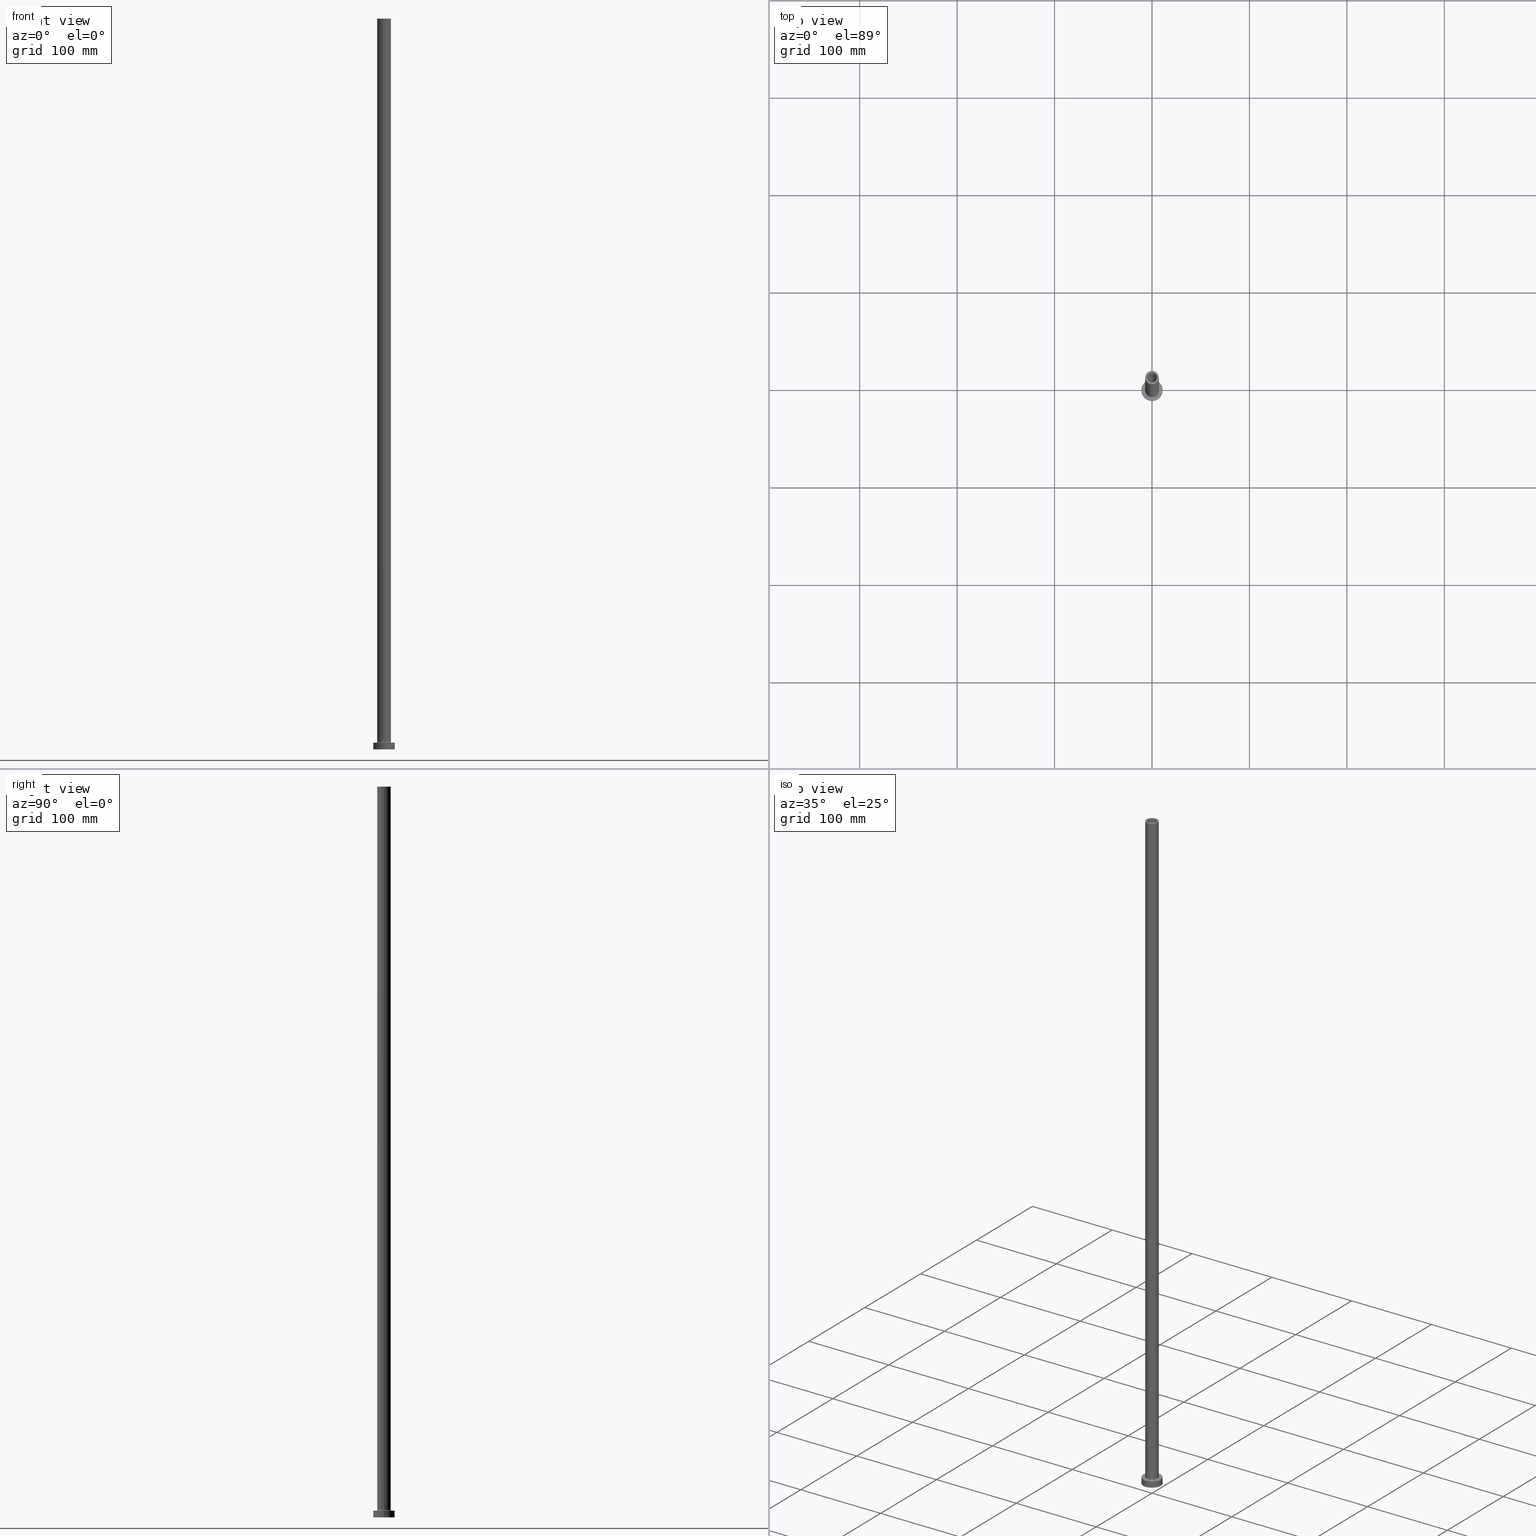
[diagram: canonical four-view strip — front | top / right | iso, engineering-drawing reading convention]
A machine part, canonical four-view strip (front | top / right | iso — engineering-drawing reading convention). The complete STEP part file that produces these views, byte-faithful:
ISO-10303-21;
HEADER;
FILE_DESCRIPTION (( 'STEP AP203' ),
    '1' );
FILE_NAME ('1ff5.STEP',
    '2023-02-13T10:04:57',
    ( '' ),
    ( '' ),
    'SwSTEP 2.0',
    'SolidWorks 2019',
    '' );
FILE_SCHEMA (( 'CONFIG_CONTROL_DESIGN' ));
ENDSEC;

DATA;
#1 = CIRCLE ( 'NONE', #281, 11.00000000000000000 ) ;
#2 = LOCAL_TIME ( 11, 4, 57.00000000000000000, #368 ) ;
#3 = DIRECTION ( 'NONE',  ( 0.000000000000000000, 0.000000000000000000, -1.000000000000000000 ) ) ;
#4 = ORIENTED_EDGE ( 'NONE', *, *, #385, .T. ) ;
#5 = LINE ( 'NONE', #35, #129 ) ;
#6 = EDGE_CURVE ( 'NONE', #294, #206, #100, .T. ) ;
#7 = EDGE_LOOP ( 'NONE', ( #160, #336, #4, #18 ) ) ;
#8 = DIRECTION ( 'NONE',  ( 1.000000000000000000, 0.000000000000000000, 0.000000000000000000 ) ) ;
#9 = CIRCLE ( 'NONE', #269, 5.150000000000001243 ) ;
#10 = AXIS2_PLACEMENT_3D ( 'NONE', #145, #190, #243 ) ;
#11 = CARTESIAN_POINT ( 'NONE',  ( -11.00000000000000000, 0.000000000000000000, 7.000000000000000000 ) ) ;
#12 = ORIENTED_EDGE ( 'NONE', *, *, #432, .T. ) ;
#13 = DIRECTION ( 'NONE',  ( 0.000000000000000000, 0.000000000000000000, -1.000000000000000000 ) ) ;
#14 = DIRECTION ( 'NONE',  ( 0.000000000000000000, 0.000000000000000000, 1.000000000000000000 ) ) ;
#15 = ORIENTED_EDGE ( 'NONE', *, *, #6, .F. ) ;
#16 = PERSON_AND_ORGANIZATION_ROLE ( 'creator' ) ;
#17 = AXIS2_PLACEMENT_3D ( 'NONE', #171, #58, #342 ) ;
#18 = ORIENTED_EDGE ( 'NONE', *, *, #452, .F. ) ;
#19 = DATE_AND_TIME ( #193, #93 ) ;
#20 = EDGE_CURVE ( 'NONE', #31, #138, #1, .T. ) ;
#21 = ORIENTED_EDGE ( 'NONE', *, *, #398, .T. ) ;
#22 = PERSON_AND_ORGANIZATION_ROLE ( 'classification_officer' ) ;
#23 = DIRECTION ( 'NONE',  ( 0.000000000000000000, 0.000000000000000000, 1.000000000000000000 ) ) ;
#24 = APPROVAL_ROLE ( '' ) ;
#25 = DIRECTION ( 'NONE',  ( 1.000000000000000000, 0.000000000000000000, 0.000000000000000000 ) ) ;
#26 = VECTOR ( 'NONE', #310, 1000.000000000000000 ) ;
#27 = APPROVAL_ROLE ( '' ) ;
#28 = MANIFOLD_SOLID_BREP ( 'Odebrat vysunut�m4', #81 ) ;
#29 = APPROVAL ( #228, 'NEUR�EN�' ) ;
#30 = DIRECTION ( 'NONE',  ( 1.000000000000000000, 0.000000000000000000, 0.000000000000000000 ) ) ;
#31 = VERTEX_POINT ( 'NONE', #176 ) ;
#32 = LINE ( 'NONE', #233, #26 ) ;
#33 = FACE_BOUND ( 'NONE', #146, .T. ) ;
#34 = AXIS2_PLACEMENT_3D ( 'NONE', #168, #132, #372 ) ;
#35 = CARTESIAN_POINT ( 'NONE',  ( -5.000000000000000000, 0.000000000000000000, 750.0000000000000000 ) ) ;
#36 = ORIENTED_EDGE ( 'NONE', *, *, #98, .F. ) ;
#37 = LINE ( 'NONE', #283, #115 ) ;
#38 = ORIENTED_EDGE ( 'NONE', *, *, #170, .T. ) ;
#39 = DIRECTION ( 'NONE',  ( 1.000000000000000000, 0.000000000000000000, 0.000000000000000000 ) ) ;
#40 = CARTESIAN_POINT ( 'NONE',  ( 5.000000000000000000, 6.123233995736766282E-16, 705.0000000000000000 ) ) ;
#41 = VECTOR ( 'NONE', #151, 1000.000000000000000 ) ;
#42 = CARTESIAN_POINT ( 'NONE',  ( 0.000000000000000000, 0.000000000000000000, 0.000000000000000000 ) ) ;
#43 = FACE_BOUND ( 'NONE', #421, .T. ) ;
#44 = ORIENTED_EDGE ( 'NONE', *, *, #6, .T. ) ;
#45 = LINE ( 'NONE', #11, #41 ) ;
#46 = CARTESIAN_POINT ( 'NONE',  ( 5.150000000000001243, 6.306931015608869596E-16, 0.000000000000000000 ) ) ;
#47 = CC_DESIGN_PERSON_AND_ORGANIZATION_ASSIGNMENT ( #263, #268, ( #424 ) ) ;
#48 = ORIENTED_EDGE ( 'NONE', *, *, #148, .T. ) ;
#49 = CARTESIAN_POINT ( 'NONE',  ( 0.000000000000000000, 0.000000000000000000, 750.0000000000000000 ) ) ;
#50 = ORIENTED_EDGE ( 'NONE', *, *, #272, .T. ) ;
#51 = PERSON_AND_ORGANIZATION_ROLE ( 'creator' ) ;
#52 = COORDINATED_UNIVERSAL_TIME_OFFSET ( 1, 0, .AHEAD. ) ;
#53 = CIRCLE ( 'NONE', #141, 5.000000000000000000 ) ;
#54 = SECURITY_CLASSIFICATION ( '', '', #437 ) ;
#55 = FACE_BOUND ( 'NONE', #267, .T. ) ;
#56 = VERTEX_POINT ( 'NONE', #185 ) ;
#57 = CARTESIAN_POINT ( 'NONE',  ( 0.000000000000000000, 0.000000000000000000, 0.000000000000000000 ) ) ;
#58 = DIRECTION ( 'NONE',  ( 0.000000000000000000, 0.000000000000000000, 1.000000000000000000 ) ) ;
#59 = APPROVAL_DATE_TIME ( #158, #29 ) ;
#60 = CARTESIAN_POINT ( 'NONE',  ( 0.000000000000000000, 0.000000000000000000, 750.0000000000000000 ) ) ;
#61 = CARTESIAN_POINT ( 'NONE',  ( 5.000000000000000000, 6.123233995736766282E-16, 750.0000000000000000 ) ) ;
#62 = DIRECTION ( 'NONE',  ( 0.000000000000000000, 0.000000000000000000, -1.000000000000000000 ) ) ;
#63 = ADVANCED_FACE ( 'NONE', ( #43, #382 ), #392, .F. ) ;
#64 = CARTESIAN_POINT ( 'NONE',  ( -7.700000000000001066, 9.429780353434621002E-16, 7.700000000000040146 ) ) ;
#65 = CIRCLE ( 'NONE', #327, 7.700000000000001066 ) ;
#66 = CC_DESIGN_APPROVAL ( #154, ( #54 ) ) ;
#67 = DIRECTION ( 'NONE',  ( -0.000000000000000000, -0.000000000000000000, -1.000000000000000000 ) ) ;
#68 = CARTESIAN_POINT ( 'NONE',  ( 0.000000000000000000, 0.000000000000000000, 7.000000000000000000 ) ) ;
#69 = CYLINDRICAL_SURFACE ( 'NONE', #399, 7.000000000000000888 ) ;
#70 = DIRECTION ( 'NONE',  ( -1.000000000000000000, 0.000000000000000000, 0.000000000000000000 ) ) ;
#71 = PRODUCT_RELATED_PRODUCT_CATEGORY ( 'detail', '', ( #424 ) ) ;
#72 = CARTESIAN_POINT ( 'NONE',  ( 0.000000000000000000, 0.000000000000000000, 7.000000000000000000 ) ) ;
#73 = ORIENTED_EDGE ( 'NONE', *, *, #316, .F. ) ;
#74 = AXIS2_PLACEMENT_3D ( 'NONE', #128, #451, #411 ) ;
#75 = APPROVAL_PERSON_ORGANIZATION ( #123, #154, #365 ) ;
#76 = CYLINDRICAL_SURFACE ( 'NONE', #338, 5.150000000000001243 ) ;
#77 = ORIENTED_EDGE ( 'NONE', *, *, #335, .T. ) ;
#78 = DIRECTION ( 'NONE',  ( -0.000000000000000000, -0.000000000000000000, -1.000000000000000000 ) ) ;
#79 = ADVANCED_FACE ( 'NONE', ( #384 ), #326, .T. ) ;
#80 = EDGE_LOOP ( 'NONE', ( #144, #246, #257, #227 ) ) ;
#81 = CLOSED_SHELL ( 'NONE', ( #130, #284, #292, #447, #121, #79, #361, #63, #299, #232, #375, #410, #250, #415 ) ) ;
#82 = DIRECTION ( 'NONE',  ( 1.000000000000000000, 0.000000000000000000, 0.000000000000000000 ) ) ;
#83 = ORIENTED_EDGE ( 'NONE', *, *, #237, .F. ) ;
#84 = APPLICATION_PROTOCOL_DEFINITION ( 'international standard', 'config_control_design', 1994, #254 ) ;
#85 = DESIGN_CONTEXT ( 'detailed design', #357, 'design' ) ;
#86 = EDGE_LOOP ( 'NONE', ( #140, #347 ) ) ;
#87 = EDGE_CURVE ( 'NONE', #303, #178, #379, .T. ) ;
#88 = DIRECTION ( 'NONE',  ( -1.000000000000000000, 0.000000000000000000, 0.000000000000000000 ) ) ;
#89 = VERTEX_POINT ( 'NONE', #354 ) ;
#90 = APPROVAL_DATE_TIME ( #266, #154 ) ;
#91 = AXIS2_PLACEMENT_3D ( 'NONE', #286, #386, #280 ) ;
#92 = DIRECTION ( 'NONE',  ( -0.000000000000000000, -0.000000000000000000, -1.000000000000000000 ) ) ;
#93 = LOCAL_TIME ( 11, 4, 57.00000000000000000, #95 ) ;
#94 = VERTEX_POINT ( 'NONE', #40 ) ;
#95 = COORDINATED_UNIVERSAL_TIME_OFFSET ( 1, 0, .AHEAD. ) ;
#96 = CARTESIAN_POINT ( 'NONE',  ( -7.700000000000001066, 9.429780353434621002E-16, 7.000000000000020428 ) ) ;
#97 = CARTESIAN_POINT ( 'NONE',  ( -5.150000000000001243, 0.000000000000000000, 705.0000000000000000 ) ) ;
#98 = EDGE_CURVE ( 'NONE', #178, #303, #65, .T. ) ;
#99 = CARTESIAN_POINT ( 'NONE',  ( 0.000000000000000000, 0.000000000000000000, 705.0000000000000000 ) ) ;
#100 = CIRCLE ( 'NONE', #297, 11.00000000000000000 ) ;
#101 = DIRECTION ( 'NONE',  ( 1.000000000000000000, 0.000000000000000000, -0.000000000000000000 ) ) ;
#102 = CC_DESIGN_PERSON_AND_ORGANIZATION_ASSIGNMENT ( #167, #51, ( #189 ) ) ;
#103 = CARTESIAN_POINT ( 'NONE',  ( 0.000000000000000000, 0.000000000000000000, 7.700000000000040146 ) ) ;
#104 = CARTESIAN_POINT ( 'NONE',  ( -7.000000000000000888, 0.000000000000000000, 750.0000000000000000 ) ) ;
#105 = ORIENTED_EDGE ( 'NONE', *, *, #393, .T. ) ;
#106 = AXIS2_PLACEMENT_3D ( 'NONE', #191, #14, #25 ) ;
#107 = CYLINDRICAL_SURFACE ( 'NONE', #408, 5.000000000000000000 ) ;
#108 = CC_DESIGN_DATE_AND_TIME_ASSIGNMENT ( #298, #442, ( #54 ) ) ;
#109 = ORIENTED_EDGE ( 'NONE', *, *, #432, .F. ) ;
#110 = FACE_OUTER_BOUND ( 'NONE', #147, .T. ) ;
#111 = EDGE_LOOP ( 'NONE', ( #77, #183, #109, #196 ) ) ;
#112 = DIRECTION ( 'NONE',  ( -0.000000000000000000, -0.000000000000000000, -1.000000000000000000 ) ) ;
#113 = EDGE_LOOP ( 'NONE', ( #435, #225, #36, #73 ) ) ;
#114 = AXIS2_PLACEMENT_3D ( 'NONE', #229, #291, #117 ) ;
#115 = VECTOR ( 'NONE', #13, 1000.000000000000000 ) ;
#116 = DIRECTION ( 'NONE',  ( 0.000000000000000000, 0.000000000000000000, 1.000000000000000000 ) ) ;
#117 = DIRECTION ( 'NONE',  ( 1.000000000000000000, 0.000000000000000000, 0.000000000000000000 ) ) ;
#118 = VERTEX_POINT ( 'NONE', #46 ) ;
#119 = AXIS2_PLACEMENT_3D ( 'NONE', #302, #256, #88 ) ;
#120 = CARTESIAN_POINT ( 'NONE',  ( 0.000000000000000000, 0.000000000000000000, 750.0000000000000000 ) ) ;
#121 = ADVANCED_FACE ( 'NONE', ( #159 ), #443, .T. ) ;
#122 = ORIENTED_EDGE ( 'NONE', *, *, #321, .F. ) ;
#123 = PERSON_AND_ORGANIZATION ( #419, #380 ) ;
#124 = COORDINATED_UNIVERSAL_TIME_OFFSET ( 1, 0, .AHEAD. ) ;
#125 = DIRECTION ( 'NONE',  ( 1.000000000000000000, 0.000000000000000000, 0.000000000000000000 ) ) ;
#126 = ORIENTED_EDGE ( 'NONE', *, *, #224, .F. ) ;
#127 = CIRCLE ( 'NONE', #217, 7.000000000000000888 ) ;
#128 = CARTESIAN_POINT ( 'NONE',  ( 0.000000000000000000, 0.000000000000000000, 750.0000000000000000 ) ) ;
#129 = VECTOR ( 'NONE', #3, 1000.000000000000000 ) ;
#130 = ADVANCED_FACE ( 'NONE', ( #438 ), #403, .F. ) ;
#131 = FACE_OUTER_BOUND ( 'NONE', #7, .T. ) ;
#132 = DIRECTION ( 'NONE',  ( 0.000000000000000000, 0.000000000000000000, 1.000000000000000000 ) ) ;
#133 = CARTESIAN_POINT ( 'NONE',  ( 0.000000000000000000, 0.000000000000000000, 719.5663996924427011 ) ) ;
#134 = CIRCLE ( 'NONE', #91, 11.00000000000000000 ) ;
#135 = EDGE_CURVE ( 'NONE', #325, #320, #238, .T. ) ;
#136 = CIRCLE ( 'NONE', #10, 5.000000000000000000 ) ;
#137 = DIRECTION ( 'NONE',  ( 0.000000000000000000, 0.000000000000000000, 1.000000000000000000 ) ) ;
#138 = VERTEX_POINT ( 'NONE', #446 ) ;
#139 = DIRECTION ( 'NONE',  ( -0.000000000000000000, -0.000000000000000000, -1.000000000000000000 ) ) ;
#140 = ORIENTED_EDGE ( 'NONE', *, *, #265, .T. ) ;
#141 = AXIS2_PLACEMENT_3D ( 'NONE', #332, #329, #362 ) ;
#142 = EDGE_CURVE ( 'NONE', #94, #89, #53, .T. ) ;
#143 = CARTESIAN_POINT ( 'NONE',  ( 5.150000000000001243, 6.306931015608869596E-16, 705.0000000000000000 ) ) ;
#144 = ORIENTED_EDGE ( 'NONE', *, *, #184, .F. ) ;
#145 = CARTESIAN_POINT ( 'NONE',  ( 0.000000000000000000, 0.000000000000000000, 705.0000000000000000 ) ) ;
#146 = EDGE_LOOP ( 'NONE', ( #367, #216 ) ) ;
#147 = EDGE_LOOP ( 'NONE', ( #431, #230, #21, #377 ) ) ;
#148 = EDGE_CURVE ( 'NONE', #138, #206, #45, .T. ) ;
#149 = CIRCLE ( 'NONE', #289, 5.000000000000000000 ) ;
#150 = PRODUCT_DEFINITION_SHAPE ( 'NONE', 'NONE',  #189 ) ;
#151 = DIRECTION ( 'NONE',  ( -0.000000000000000000, -0.000000000000000000, -1.000000000000000000 ) ) ;
#152 = ORIENTED_EDGE ( 'NONE', *, *, #393, .F. ) ;
#153 = DIRECTION ( 'NONE',  ( -1.000000000000000000, 1.224646799147351975E-16, 0.000000000000000000 ) ) ;
#154 = APPROVAL ( #450, 'NEUR�EN�' ) ;
#155 = PERSON_AND_ORGANIZATION ( #419, #380 ) ;
#156 = AXIS2_PLACEMENT_3D ( 'NONE', #172, #23, #101 ) ;
#157 = DIRECTION ( 'NONE',  ( -0.000000000000000000, -0.000000000000000000, -1.000000000000000000 ) ) ;
#158 = DATE_AND_TIME ( #405, #210 ) ;
#159 = FACE_OUTER_BOUND ( 'NONE', #458, .T. ) ;
#160 = ORIENTED_EDGE ( 'NONE', *, *, #224, .T. ) ;
#161 = CALENDAR_DATE ( 2023, 13, 2 ) ;
#162 = FACE_OUTER_BOUND ( 'NONE', #221, .T. ) ;
#163 = EDGE_CURVE ( 'NONE', #220, #175, #149, .T. ) ;
#164 = AXIS2_PLACEMENT_3D ( 'NONE', #68, #212, #352 ) ;
#165 = CARTESIAN_POINT ( 'NONE',  ( 7.700000000000001066, 0.000000000000000000, 7.700000000000040146 ) ) ;
#166 = PRODUCT_DEFINITION_FORMATION_WITH_SPECIFIED_SOURCE ( 'LIBOVOLN�', '', #424, .NOT_KNOWN. ) ;
#167 = PERSON_AND_ORGANIZATION ( #419, #380 ) ;
#168 = CARTESIAN_POINT ( 'NONE',  ( 0.000000000000000000, 0.000000000000000000, 7.000000000000000000 ) ) ;
#169 = ORIENTED_EDGE ( 'NONE', *, *, #98, .T. ) ;
#170 = EDGE_CURVE ( 'NONE', #56, #262, #356, .T. ) ;
#171 = CARTESIAN_POINT ( 'NONE',  ( 0.000000000000000000, 0.000000000000000000, 705.0000000000000000 ) ) ;
#172 = CARTESIAN_POINT ( 'NONE',  ( 0.000000000000000000, 0.000000000000000000, 750.0000000000000000 ) ) ;
#173 = AXIS2_PLACEMENT_3D ( 'NONE', #456, #137, #271 ) ;
#174 = CC_DESIGN_APPROVAL ( #29, ( #189 ) ) ;
#175 = VERTEX_POINT ( 'NONE', #366 ) ;
#176 = CARTESIAN_POINT ( 'NONE',  ( 11.00000000000000000, 1.347111479062088405E-15, 7.000000000000000000 ) ) ;
#177 = CARTESIAN_POINT ( 'NONE',  ( 11.00000000000000000, 1.347111479062088405E-15, 7.000000000000000000 ) ) ;
#178 = VERTEX_POINT ( 'NONE', #376 ) ;
#179 = CC_DESIGN_PERSON_AND_ORGANIZATION_ASSIGNMENT ( #301, #22, ( #54 ) ) ;
#180 = DIRECTION ( 'NONE',  ( 1.000000000000000000, 0.000000000000000000, 0.000000000000000000 ) ) ;
#181 = CARTESIAN_POINT ( 'NONE',  ( 0.000000000000000000, 0.000000000000000000, 7.000000000000000000 ) ) ;
#182 = CARTESIAN_POINT ( 'NONE',  ( 0.000000000000000000, 0.000000000000000000, 750.0000000000000000 ) ) ;
#183 = ORIENTED_EDGE ( 'NONE', *, *, #242, .T. ) ;
#184 = EDGE_CURVE ( 'NONE', #325, #118, #236, .T. ) ;
#185 = CARTESIAN_POINT ( 'NONE',  ( -7.000000000000000888, 0.000000000000000000, 7.700000000000040146 ) ) ;
#186 = VECTOR ( 'NONE', #67, 1000.000000000000000 ) ;
#187 = CIRCLE ( 'NONE', #440, 0.7000000000000000666 ) ;
#188 = ORIENTED_EDGE ( 'NONE', *, *, #265, .F. ) ;
#189 = PRODUCT_DEFINITION ( 'NEZN�M�', '', #166, #85 ) ;
#190 = DIRECTION ( 'NONE',  ( 0.000000000000000000, 0.000000000000000000, 1.000000000000000000 ) ) ;
#191 = CARTESIAN_POINT ( 'NONE',  ( 0.000000000000000000, 0.000000000000000000, 7.700000000000040146 ) ) ;
#192 = PERSON_AND_ORGANIZATION ( #419, #380 ) ;
#193 = CALENDAR_DATE ( 2023, 13, 2 ) ;
#194 = TOROIDAL_SURFACE ( 'NONE', #455, 7.700000000000001066, 0.6999999999999999556 ) ;
#195 = AXIS2_PLACEMENT_3D ( 'NONE', #72, #295, #381 ) ;
#196 = ORIENTED_EDGE ( 'NONE', *, *, #425, .F. ) ;
#197 = SHAPE_DEFINITION_REPRESENTATION ( #150, #444 ) ;
#198 = CARTESIAN_POINT ( 'NONE',  ( 11.00000000000000000, 1.347111479062088405E-15, 0.000000000000000000 ) ) ;
#199 = EDGE_LOOP ( 'NONE', ( #360, #50 ) ) ;
#200 = CALENDAR_DATE ( 2023, 13, 2 ) ;
#201 = CARTESIAN_POINT ( 'NONE',  ( 7.000000000000000888, 8.572527594031472204E-16, 7.700000000000040146 ) ) ;
#202 = DATE_TIME_ROLE ( 'creation_date' ) ;
#203 = CIRCLE ( 'NONE', #373, 5.150000000000001243 ) ;
#204 = DIRECTION ( 'NONE',  ( 0.000000000000000000, 0.000000000000000000, 1.000000000000000000 ) ) ;
#205 = CC_DESIGN_APPROVAL ( #309, ( #166 ) ) ;
#206 = VERTEX_POINT ( 'NONE', #346 ) ;
#207 = PLANE ( 'NONE',  #17 ) ;
#208 = DIRECTION ( 'NONE',  ( -1.000000000000000000, 0.000000000000000000, 0.000000000000000000 ) ) ;
#209 = AXIS2_PLACEMENT_3D ( 'NONE', #60, #345, #30 ) ;
#210 = LOCAL_TIME ( 11, 4, 57.00000000000000000, #344 ) ;
#211 = FACE_OUTER_BOUND ( 'NONE', #264, .T. ) ;
#212 = DIRECTION ( 'NONE',  ( -0.000000000000000000, -0.000000000000000000, -1.000000000000000000 ) ) ;
#213 = DIRECTION ( 'NONE',  ( -1.000000000000000000, 0.000000000000000000, 0.000000000000000000 ) ) ;
#214 = CARTESIAN_POINT ( 'NONE',  ( 0.000000000000000000, 0.000000000000000000, 7.000000000000000000 ) ) ;
#215 = PLANE ( 'NONE',  #195 ) ;
#216 = ORIENTED_EDGE ( 'NONE', *, *, #163, .F. ) ;
#217 = AXIS2_PLACEMENT_3D ( 'NONE', #340, #204, #312 ) ;
#218 = EDGE_CURVE ( 'NONE', #404, #56, #32, .T. ) ;
#219 = FACE_OUTER_BOUND ( 'NONE', #86, .T. ) ;
#220 = VERTEX_POINT ( 'NONE', #61 ) ;
#221 = EDGE_LOOP ( 'NONE', ( #126, #358 ) ) ;
#222 = DIRECTION ( 'NONE',  ( -1.000000000000000000, 0.000000000000000000, 0.000000000000000000 ) ) ;
#223 = AXIS2_PLACEMENT_3D ( 'NONE', #395, #92, #222 ) ;
#224 = EDGE_CURVE ( 'NONE', #320, #325, #203, .T. ) ;
#225 = ORIENTED_EDGE ( 'NONE', *, *, #459, .T. ) ;
#226 =( NAMED_UNIT ( * ) SI_UNIT ( $, .STERADIAN. ) SOLID_ANGLE_UNIT ( ) );
#227 = ORIENTED_EDGE ( 'NONE', *, *, #370, .T. ) ;
#228 = APPROVAL_STATUS ( 'not_yet_approved' ) ;
#229 = CARTESIAN_POINT ( 'NONE',  ( 0.000000000000000000, 0.000000000000000000, 705.0000000000000000 ) ) ;
#230 = ORIENTED_EDGE ( 'NONE', *, *, #237, .T. ) ;
#231 = VECTOR ( 'NONE', #414, 1000.000000000000000 ) ;
#232 = ADVANCED_FACE ( 'NONE', ( #33, #235 ), #374, .T. ) ;
#233 = CARTESIAN_POINT ( 'NONE',  ( -7.000000000000000888, 0.000000000000000000, 750.0000000000000000 ) ) ;
#234 = DIRECTION ( 'NONE',  ( 1.000000000000000000, 0.000000000000000000, 0.000000000000000000 ) ) ;
#235 = FACE_OUTER_BOUND ( 'NONE', #199, .T. ) ;
#236 = LINE ( 'NONE', #369, #231 ) ;
#237 = EDGE_CURVE ( 'NONE', #429, #262, #418, .T. ) ;
#238 = CIRCLE ( 'NONE', #114, 5.150000000000001243 ) ;
#239 = DIRECTION ( 'NONE',  ( 1.000000000000000000, 0.000000000000000000, 0.000000000000000000 ) ) ;
#240 = DIRECTION ( 'NONE',  ( -0.000000000000000000, -0.000000000000000000, -1.000000000000000000 ) ) ;
#241 = FACE_OUTER_BOUND ( 'NONE', #80, .T. ) ;
#242 = EDGE_CURVE ( 'NONE', #220, #94, #420, .T. ) ;
#243 = DIRECTION ( 'NONE',  ( 1.000000000000000000, 0.000000000000000000, 0.000000000000000000 ) ) ;
#244 = AXIS2_PLACEMENT_3D ( 'NONE', #251, #389, #355 ) ;
#245 = CC_DESIGN_SECURITY_CLASSIFICATION ( #54, ( #166 ) ) ;
#246 = ORIENTED_EDGE ( 'NONE', *, *, #135, .T. ) ;
#247 = CARTESIAN_POINT ( 'NONE',  ( 7.000000000000000888, 8.572527594031472204E-16, 750.0000000000000000 ) ) ;
#248 = DIRECTION ( 'NONE',  ( 0.000000000000000000, 0.000000000000000000, 1.000000000000000000 ) ) ;
#249 = CARTESIAN_POINT ( 'NONE',  ( 0.000000000000000000, 0.000000000000000000, 0.000000000000000000 ) ) ;
#250 = ADVANCED_FACE ( 'NONE', ( #55, #162 ), #207, .F. ) ;
#251 = CARTESIAN_POINT ( 'NONE',  ( 0.000000000000000000, 0.000000000000000000, 7.700000000000040146 ) ) ;
#252 = DIRECTION ( 'NONE',  ( 1.000000000000000000, 0.000000000000000000, 0.000000000000000000 ) ) ;
#253 = DIRECTION ( 'NONE',  ( 0.000000000000000000, 0.000000000000000000, 1.000000000000000000 ) ) ;
#254 = APPLICATION_CONTEXT ( 'configuration controlled 3d designs of mechanical parts and assemblies' ) ;
#255 = CC_DESIGN_PERSON_AND_ORGANIZATION_ASSIGNMENT ( #155, #304, ( #166 ) ) ;
#256 = DIRECTION ( 'NONE',  ( 0.000000000000000000, 0.000000000000000000, -1.000000000000000000 ) ) ;
#257 = ORIENTED_EDGE ( 'NONE', *, *, #452, .T. ) ;
#258 = CIRCLE ( 'NONE', #34, 11.00000000000000000 ) ;
#259 =( GEOMETRIC_REPRESENTATION_CONTEXT ( 3 ) GLOBAL_UNCERTAINTY_ASSIGNED_CONTEXT ( ( #261 ) ) GLOBAL_UNIT_ASSIGNED_CONTEXT ( ( #457, #371, #226 ) ) REPRESENTATION_CONTEXT ( 'NONE', 'WORKASPACE' ) );
#260 = APPROVAL_DATE_TIME ( #19, #309 ) ;
#261 = UNCERTAINTY_MEASURE_WITH_UNIT (LENGTH_MEASURE( 1.000000000000000082E-05 ), #457, 'distance_accuracy_value', 'NONE');
#262 = VERTEX_POINT ( 'NONE', #201 ) ;
#263 = PERSON_AND_ORGANIZATION ( #419, #380 ) ;
#264 = EDGE_LOOP ( 'NONE', ( #330, #401, #315, #288 ) ) ;
#265 = EDGE_CURVE ( 'NONE', #138, #31, #258, .T. ) ;
#266 = DATE_AND_TIME ( #200, #434 ) ;
#267 = EDGE_LOOP ( 'NONE', ( #12, #296 ) ) ;
#268 = PERSON_AND_ORGANIZATION_ROLE ( 'design_owner' ) ;
#269 = AXIS2_PLACEMENT_3D ( 'NONE', #42, #139, #180 ) ;
#270 = AXIS2_PLACEMENT_3D ( 'NONE', #57, #402, #234 ) ;
#271 = DIRECTION ( 'NONE',  ( 1.000000000000000000, 0.000000000000000000, 0.000000000000000000 ) ) ;
#272 = EDGE_CURVE ( 'NONE', #429, #404, #127, .T. ) ;
#273 = DIRECTION ( 'NONE',  ( 0.000000000000000000, 0.000000000000000000, -1.000000000000000000 ) ) ;
#274 = DIRECTION ( 'NONE',  ( 0.000000000000000000, 0.000000000000000000, -1.000000000000000000 ) ) ;
#275 = AXIS2_PLACEMENT_3D ( 'NONE', #461, #253, #387 ) ;
#276 = DIRECTION ( 'NONE',  ( 0.000000000000000000, 0.000000000000000000, 1.000000000000000000 ) ) ;
#277 = CARTESIAN_POINT ( 'NONE',  ( 5.000000000000000000, 6.123233995736766282E-16, 750.0000000000000000 ) ) ;
#278 = CC_DESIGN_PERSON_AND_ORGANIZATION_ASSIGNMENT ( #409, #16, ( #166 ) ) ;
#279 = ORIENTED_EDGE ( 'NONE', *, *, #218, .T. ) ;
#280 = DIRECTION ( 'NONE',  ( 1.000000000000000000, 0.000000000000000000, 0.000000000000000000 ) ) ;
#281 = AXIS2_PLACEMENT_3D ( 'NONE', #214, #248, #8 ) ;
#282 = ORIENTED_EDGE ( 'NONE', *, *, #87, .T. ) ;
#283 = CARTESIAN_POINT ( 'NONE',  ( -5.150000000000001243, 0.000000000000000000, 719.5663996924427011 ) ) ;
#284 = ADVANCED_FACE ( 'NONE', ( #131 ), #454, .F. ) ;
#285 = ORIENTED_EDGE ( 'NONE', *, *, #163, .T. ) ;
#286 = CARTESIAN_POINT ( 'NONE',  ( 0.000000000000000000, 0.000000000000000000, 0.000000000000000000 ) ) ;
#287 = ORIENTED_EDGE ( 'NONE', *, *, #328, .F. ) ;
#288 = ORIENTED_EDGE ( 'NONE', *, *, #87, .F. ) ;
#289 = AXIS2_PLACEMENT_3D ( 'NONE', #120, #293, #82 ) ;
#290 = LOCAL_TIME ( 11, 4, 57.00000000000000000, #52 ) ;
#291 = DIRECTION ( 'NONE',  ( 0.000000000000000000, 0.000000000000000000, 1.000000000000000000 ) ) ;
#292 = ADVANCED_FACE ( 'NONE', ( #314 ), #313, .F. ) ;
#293 = DIRECTION ( 'NONE',  ( 0.000000000000000000, 0.000000000000000000, 1.000000000000000000 ) ) ;
#294 = VERTEX_POINT ( 'NONE', #198 ) ;
#295 = DIRECTION ( 'NONE',  ( 0.000000000000000000, 0.000000000000000000, 1.000000000000000000 ) ) ;
#296 = ORIENTED_EDGE ( 'NONE', *, *, #142, .T. ) ;
#297 = AXIS2_PLACEMENT_3D ( 'NONE', #249, #116, #252 ) ;
#298 = DATE_AND_TIME ( #445, #2 ) ;
#299 = ADVANCED_FACE ( 'NONE', ( #305 ), #448, .T. ) ;
#300 = EDGE_LOOP ( 'NONE', ( #152, #188, #48, #396 ) ) ;
#301 = PERSON_AND_ORGANIZATION ( #419, #380 ) ;
#302 = CARTESIAN_POINT ( 'NONE',  ( 0.000000000000000000, 0.000000000000000000, 750.0000000000000000 ) ) ;
#303 = VERTEX_POINT ( 'NONE', #96 ) ;
#304 = PERSON_AND_ORGANIZATION_ROLE ( 'design_supplier' ) ;
#305 = FACE_OUTER_BOUND ( 'NONE', #333, .T. ) ;
#306 = MECHANICAL_CONTEXT ( 'NONE', #254, 'mechanical' ) ;
#307 = CIRCLE ( 'NONE', #209, 7.000000000000000888 ) ;
#308 = DIRECTION ( 'NONE',  ( 0.000000000000000000, -1.000000000000000000, 0.000000000000000000 ) ) ;
#309 = APPROVAL ( #334, 'NEUR�EN�' ) ;
#310 = DIRECTION ( 'NONE',  ( -0.000000000000000000, -0.000000000000000000, -1.000000000000000000 ) ) ;
#311 = ORIENTED_EDGE ( 'NONE', *, *, #385, .F. ) ;
#312 = DIRECTION ( 'NONE',  ( 1.000000000000000000, 0.000000000000000000, 0.000000000000000000 ) ) ;
#313 = TOROIDAL_SURFACE ( 'NONE', #173, 7.700000000000001066, 0.6999999999999999556 ) ;
#314 = FACE_OUTER_BOUND ( 'NONE', #113, .T. ) ;
#315 = ORIENTED_EDGE ( 'NONE', *, *, #316, .T. ) ;
#316 = EDGE_CURVE ( 'NONE', #262, #178, #364, .T. ) ;
#317 = CARTESIAN_POINT ( 'NONE',  ( 0.000000000000000000, 0.000000000000000000, 750.0000000000000000 ) ) ;
#318 = VERTEX_POINT ( 'NONE', #413 ) ;
#319 = FACE_OUTER_BOUND ( 'NONE', #350, .T. ) ;
#320 = VERTEX_POINT ( 'NONE', #97 ) ;
#321 = EDGE_CURVE ( 'NONE', #404, #429, #307, .T. ) ;
#322 = DIRECTION ( 'NONE',  ( -1.000000000000000000, 0.000000000000000000, 0.000000000000000000 ) ) ;
#323 = EDGE_LOOP ( 'NONE', ( #287, #15 ) ) ;
#324 = CARTESIAN_POINT ( 'NONE',  ( 0.000000000000000000, 0.000000000000000000, 719.5663996924427011 ) ) ;
#325 = VERTEX_POINT ( 'NONE', #143 ) ;
#326 = CYLINDRICAL_SURFACE ( 'NONE', #397, 11.00000000000000000 ) ;
#327 = AXIS2_PLACEMENT_3D ( 'NONE', #181, #157, #125 ) ;
#328 = EDGE_CURVE ( 'NONE', #206, #294, #134, .T. ) ;
#329 = DIRECTION ( 'NONE',  ( 0.000000000000000000, 0.000000000000000000, 1.000000000000000000 ) ) ;
#330 = ORIENTED_EDGE ( 'NONE', *, *, #459, .F. ) ;
#331 = FACE_BOUND ( 'NONE', #423, .T. ) ;
#332 = CARTESIAN_POINT ( 'NONE',  ( 0.000000000000000000, 0.000000000000000000, 705.0000000000000000 ) ) ;
#333 = EDGE_LOOP ( 'NONE', ( #83, #122, #279, #38 ) ) ;
#334 = APPROVAL_STATUS ( 'not_yet_approved' ) ;
#335 = EDGE_CURVE ( 'NONE', #175, #220, #439, .T. ) ;
#336 = ORIENTED_EDGE ( 'NONE', *, *, #184, .T. ) ;
#337 = AXIS2_PLACEMENT_3D ( 'NONE', #165, #308, #273 ) ;
#338 = AXIS2_PLACEMENT_3D ( 'NONE', #324, #351, #359 ) ;
#339 = APPLICATION_PROTOCOL_DEFINITION ( 'international standard', 'config_control_design', 1994, #357 ) ;
#340 = CARTESIAN_POINT ( 'NONE',  ( 0.000000000000000000, 0.000000000000000000, 750.0000000000000000 ) ) ;
#341 = ORIENTED_EDGE ( 'NONE', *, *, #142, .F. ) ;
#342 = DIRECTION ( 'NONE',  ( 1.000000000000000000, 0.000000000000000000, -0.000000000000000000 ) ) ;
#343 = CC_DESIGN_DATE_AND_TIME_ASSIGNMENT ( #412, #202, ( #189 ) ) ;
#344 = COORDINATED_UNIVERSAL_TIME_OFFSET ( 1, 0, .AHEAD. ) ;
#345 = DIRECTION ( 'NONE',  ( 0.000000000000000000, 0.000000000000000000, 1.000000000000000000 ) ) ;
#346 = CARTESIAN_POINT ( 'NONE',  ( -11.00000000000000000, 0.000000000000000000, 0.000000000000000000 ) ) ;
#347 = ORIENTED_EDGE ( 'NONE', *, *, #20, .T. ) ;
#348 = CIRCLE ( 'NONE', #388, 5.150000000000001243 ) ;
#349 = DIRECTION ( 'NONE',  ( 0.000000000000000000, 0.000000000000000000, 1.000000000000000000 ) ) ;
#350 = EDGE_LOOP ( 'NONE', ( #427, #285, #436, #341 ) ) ;
#351 = DIRECTION ( 'NONE',  ( 0.000000000000000000, 0.000000000000000000, -1.000000000000000000 ) ) ;
#352 = DIRECTION ( 'NONE',  ( 1.000000000000000000, 0.000000000000000000, 0.000000000000000000 ) ) ;
#353 = LINE ( 'NONE', #177, #186 ) ;
#354 = CARTESIAN_POINT ( 'NONE',  ( -5.000000000000000000, 0.000000000000000000, 705.0000000000000000 ) ) ;
#355 = DIRECTION ( 'NONE',  ( 1.000000000000000000, 0.000000000000000000, 0.000000000000000000 ) ) ;
#356 = CIRCLE ( 'NONE', #106, 7.000000000000000888 ) ;
#357 = APPLICATION_CONTEXT ( 'configuration controlled 3d designs of mechanical parts and assemblies' ) ;
#358 = ORIENTED_EDGE ( 'NONE', *, *, #135, .F. ) ;
#359 = DIRECTION ( 'NONE',  ( -1.000000000000000000, 0.000000000000000000, 0.000000000000000000 ) ) ;
#360 = ORIENTED_EDGE ( 'NONE', *, *, #321, .T. ) ;
#361 = ADVANCED_FACE ( 'NONE', ( #331, #219 ), #215, .T. ) ;
#362 = DIRECTION ( 'NONE',  ( 1.000000000000000000, 0.000000000000000000, 0.000000000000000000 ) ) ;
#363 = PERSON_AND_ORGANIZATION ( #419, #380 ) ;
#364 = CIRCLE ( 'NONE', #337, 0.7000000000000000666 ) ;
#365 = APPROVAL_ROLE ( '' ) ;
#366 = CARTESIAN_POINT ( 'NONE',  ( -5.000000000000000000, 0.000000000000000000, 750.0000000000000000 ) ) ;
#367 = ORIENTED_EDGE ( 'NONE', *, *, #335, .F. ) ;
#368 = COORDINATED_UNIVERSAL_TIME_OFFSET ( 1, 0, .AHEAD. ) ;
#369 = CARTESIAN_POINT ( 'NONE',  ( 5.150000000000001243, 6.306931015608869596E-16, 719.5663996924427011 ) ) ;
#370 = EDGE_CURVE ( 'NONE', #318, #118, #348, .T. ) ;
#371 =( NAMED_UNIT ( * ) PLANE_ANGLE_UNIT ( ) SI_UNIT ( $, .RADIAN. ) );
#372 = DIRECTION ( 'NONE',  ( 1.000000000000000000, 0.000000000000000000, 0.000000000000000000 ) ) ;
#373 = AXIS2_PLACEMENT_3D ( 'NONE', #99, #276, #239 ) ;
#374 = PLANE ( 'NONE',  #156 ) ;
#375 = ADVANCED_FACE ( 'NONE', ( #211 ), #194, .F. ) ;
#376 = CARTESIAN_POINT ( 'NONE',  ( 7.700000000000001066, 0.000000000000000000, 7.000000000000020428 ) ) ;
#377 = ORIENTED_EDGE ( 'NONE', *, *, #218, .F. ) ;
#378 = DIRECTION ( 'NONE',  ( 0.000000000000000000, 0.000000000000000000, -1.000000000000000000 ) ) ;
#379 = CIRCLE ( 'NONE', #164, 7.700000000000001066 ) ;
#380 = ORGANIZATION ( 'NEUR�EN�', 'NEUR�EN�', '' ) ;
#381 = DIRECTION ( 'NONE',  ( 1.000000000000000000, 0.000000000000000000, -0.000000000000000000 ) ) ;
#382 = FACE_OUTER_BOUND ( 'NONE', #323, .T. ) ;
#383 = DIRECTION ( 'NONE',  ( 1.000000000000000000, 0.000000000000000000, 0.000000000000000000 ) ) ;
#384 = FACE_OUTER_BOUND ( 'NONE', #300, .T. ) ;
#385 = EDGE_CURVE ( 'NONE', #118, #318, #9, .T. ) ;
#386 = DIRECTION ( 'NONE',  ( 0.000000000000000000, 0.000000000000000000, 1.000000000000000000 ) ) ;
#387 = DIRECTION ( 'NONE',  ( 1.000000000000000000, 0.000000000000000000, -0.000000000000000000 ) ) ;
#388 = AXIS2_PLACEMENT_3D ( 'NONE', #426, #112, #39 ) ;
#389 = DIRECTION ( 'NONE',  ( 0.000000000000000000, 0.000000000000000000, 1.000000000000000000 ) ) ;
#390 = AXIS2_PLACEMENT_3D ( 'NONE', #49, #349, #430 ) ;
#391 = APPROVAL_PERSON_ORGANIZATION ( #192, #309, #27 ) ;
#392 = PLANE ( 'NONE',  #275 ) ;
#393 = EDGE_CURVE ( 'NONE', #31, #294, #353, .T. ) ;
#394 = CARTESIAN_POINT ( 'NONE',  ( 0.000000000000000000, 0.000000000000000000, 7.000000000000000000 ) ) ;
#395 = CARTESIAN_POINT ( 'NONE',  ( 0.000000000000000000, 0.000000000000000000, 7.000000000000000000 ) ) ;
#396 = ORIENTED_EDGE ( 'NONE', *, *, #328, .T. ) ;
#397 = AXIS2_PLACEMENT_3D ( 'NONE', #394, #78, #70 ) ;
#398 = EDGE_CURVE ( 'NONE', #262, #56, #449, .T. ) ;
#399 = AXIS2_PLACEMENT_3D ( 'NONE', #317, #460, #213 ) ;
#400 = ORIENTED_EDGE ( 'NONE', *, *, #20, .F. ) ;
#401 = ORIENTED_EDGE ( 'NONE', *, *, #398, .F. ) ;
#402 = DIRECTION ( 'NONE',  ( 0.000000000000000000, 0.000000000000000000, 1.000000000000000000 ) ) ;
#403 = CYLINDRICAL_SURFACE ( 'NONE', #119, 5.000000000000000000 ) ;
#404 = VERTEX_POINT ( 'NONE', #104 ) ;
#405 = CALENDAR_DATE ( 2023, 13, 2 ) ;
#406 = AXIS2_PLACEMENT_3D ( 'NONE', #133, #62, #208 ) ;
#407 = ORIENTED_EDGE ( 'NONE', *, *, #148, .F. ) ;
#408 = AXIS2_PLACEMENT_3D ( 'NONE', #182, #378, #322 ) ;
#409 = PERSON_AND_ORGANIZATION ( #419, #380 ) ;
#410 = ADVANCED_FACE ( 'NONE', ( #241 ), #76, .F. ) ;
#411 = DIRECTION ( 'NONE',  ( -1.000000000000000000, 0.000000000000000000, 0.000000000000000000 ) ) ;
#412 = DATE_AND_TIME ( #161, #290 ) ;
#413 = CARTESIAN_POINT ( 'NONE',  ( -5.150000000000001243, 0.000000000000000000, 0.000000000000000000 ) ) ;
#414 = DIRECTION ( 'NONE',  ( 0.000000000000000000, 0.000000000000000000, -1.000000000000000000 ) ) ;
#415 = ADVANCED_FACE ( 'NONE', ( #319 ), #107, .F. ) ;
#416 = VECTOR ( 'NONE', #240, 1000.000000000000000 ) ;
#417 = APPROVAL_PERSON_ORGANIZATION ( #363, #29, #24 ) ;
#418 = LINE ( 'NONE', #453, #416 ) ;
#419 = PERSON ( 'NEUR�EN�', 'NEUR�EN�', 'NEUR�EN�', ('NEUR�EN�'), ('NEUR�EN�'), ('NEUR�EN�') ) ;
#420 = LINE ( 'NONE', #277, #433 ) ;
#421 = EDGE_LOOP ( 'NONE', ( #441, #311 ) ) ;
#422 = DIRECTION ( 'NONE',  ( 0.000000000000000000, 0.000000000000000000, 1.000000000000000000 ) ) ;
#423 = EDGE_LOOP ( 'NONE', ( #169, #282 ) ) ;
#424 = PRODUCT ( '1ff5', '1ff5', '', ( #306 ) ) ;
#425 = EDGE_CURVE ( 'NONE', #175, #89, #5, .T. ) ;
#426 = CARTESIAN_POINT ( 'NONE',  ( 0.000000000000000000, 0.000000000000000000, 0.000000000000000000 ) ) ;
#427 = ORIENTED_EDGE ( 'NONE', *, *, #242, .F. ) ;
#428 = DIRECTION ( 'NONE',  ( 1.224646799147353207E-16, 1.000000000000000000, -0.000000000000000000 ) ) ;
#429 = VERTEX_POINT ( 'NONE', #247 ) ;
#430 = DIRECTION ( 'NONE',  ( 1.000000000000000000, 0.000000000000000000, 0.000000000000000000 ) ) ;
#431 = ORIENTED_EDGE ( 'NONE', *, *, #272, .F. ) ;
#432 = EDGE_CURVE ( 'NONE', #89, #94, #136, .T. ) ;
#433 = VECTOR ( 'NONE', #274, 1000.000000000000000 ) ;
#434 = LOCAL_TIME ( 11, 4, 57.00000000000000000, #124 ) ;
#435 = ORIENTED_EDGE ( 'NONE', *, *, #170, .F. ) ;
#436 = ORIENTED_EDGE ( 'NONE', *, *, #425, .T. ) ;
#437 = SECURITY_CLASSIFICATION_LEVEL ( 'unclassified' ) ;
#438 = FACE_OUTER_BOUND ( 'NONE', #111, .T. ) ;
#439 = CIRCLE ( 'NONE', #390, 5.000000000000000000 ) ;
#440 = AXIS2_PLACEMENT_3D ( 'NONE', #64, #428, #153 ) ;
#441 = ORIENTED_EDGE ( 'NONE', *, *, #370, .F. ) ;
#442 = DATE_TIME_ROLE ( 'classification_date' ) ;
#443 = CYLINDRICAL_SURFACE ( 'NONE', #223, 11.00000000000000000 ) ;
#444 = ADVANCED_BREP_SHAPE_REPRESENTATION ( '1ff5', ( #28, #270 ), #259 ) ;
#445 = CALENDAR_DATE ( 2023, 13, 2 ) ;
#446 = CARTESIAN_POINT ( 'NONE',  ( -11.00000000000000000, 0.000000000000000000, 7.000000000000000000 ) ) ;
#447 = ADVANCED_FACE ( 'NONE', ( #110 ), #69, .T. ) ;
#448 = CYLINDRICAL_SURFACE ( 'NONE', #74, 7.000000000000000888 ) ;
#449 = CIRCLE ( 'NONE', #244, 7.000000000000000888 ) ;
#450 = APPROVAL_STATUS ( 'not_yet_approved' ) ;
#451 = DIRECTION ( 'NONE',  ( -0.000000000000000000, -0.000000000000000000, -1.000000000000000000 ) ) ;
#452 = EDGE_CURVE ( 'NONE', #320, #318, #37, .T. ) ;
#453 = CARTESIAN_POINT ( 'NONE',  ( 7.000000000000000888, 8.572527594031472204E-16, 750.0000000000000000 ) ) ;
#454 = CYLINDRICAL_SURFACE ( 'NONE', #406, 5.150000000000001243 ) ;
#455 = AXIS2_PLACEMENT_3D ( 'NONE', #103, #422, #383 ) ;
#456 = CARTESIAN_POINT ( 'NONE',  ( 0.000000000000000000, 0.000000000000000000, 7.700000000000040146 ) ) ;
#457 =( LENGTH_UNIT ( ) NAMED_UNIT ( * ) SI_UNIT ( .MILLI., .METRE. ) );
#458 = EDGE_LOOP ( 'NONE', ( #400, #105, #44, #407 ) ) ;
#459 = EDGE_CURVE ( 'NONE', #56, #303, #187, .T. ) ;
#460 = DIRECTION ( 'NONE',  ( -0.000000000000000000, -0.000000000000000000, -1.000000000000000000 ) ) ;
#461 = CARTESIAN_POINT ( 'NONE',  ( 0.000000000000000000, 0.000000000000000000, 0.000000000000000000 ) ) ;
ENDSEC;
END-ISO-10303-21;
